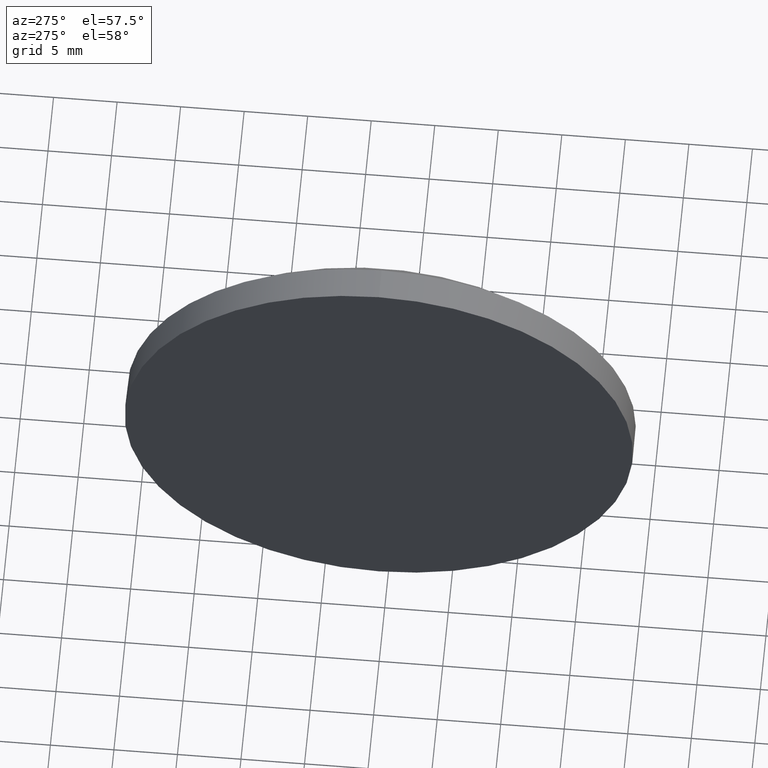
[diagram: clean part render]
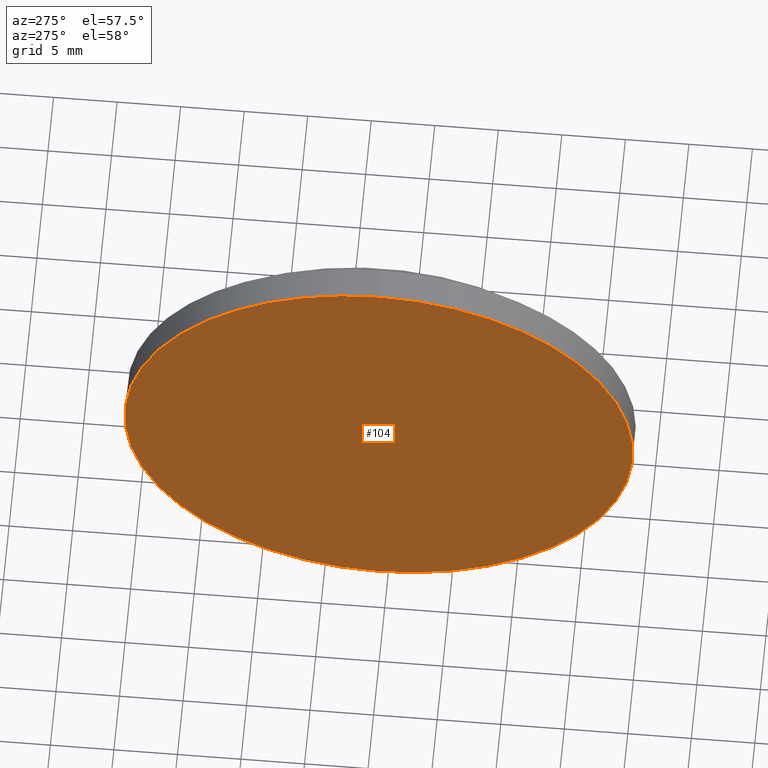
[diagram: same view with one face highlighted and labeled with its STEP entity id]
A machine part, auxiliary view. The second image highlights one B-rep face of the part: STEP entity #104.
In plain terms, the highlighted planar face has unit normal (1, 0, 0).
Its self-contained STEP definition (entity closure, byte-faithful):
#5 = CARTESIAN_POINT ( 'NONE',  ( 472.7872802130123100, 140.7123955263322200, 19.99999999999998900 ) ) ;
#7 = CARTESIAN_POINT ( 'NONE',  ( 472.7872802130123100, 140.7123955263322200, 0.0000000000000000000 ) ) ;
#12 = DIRECTION ( 'NONE',  ( -1.000000000000000000, -0.0000000000000000000, -0.0000000000000000000 ) ) ;
#18 = CARTESIAN_POINT ( 'NONE',  ( 472.7872802130123100, 140.7123955263322200, 0.0000000000000000000 ) ) ;
#27 = ORIENTED_EDGE ( 'NONE', *, *, #60, .T. ) ;
#32 = CARTESIAN_POINT ( 'NONE',  ( 472.7872802130123100, 140.7123955263322200, 0.0000000000000000000 ) ) ;
#37 = EDGE_LOOP ( 'NONE', ( #27, #135 ) ) ;
#42 = VERTEX_POINT ( 'NONE', #5 ) ;
#46 = DIRECTION ( 'NONE',  ( -1.000000000000000000, -0.0000000000000000000, -0.0000000000000000000 ) ) ;
#52 = CARTESIAN_POINT ( 'NONE',  ( 472.7872802130123100, 140.7123955263322200, -19.99999999999998900 ) ) ;
#60 = EDGE_CURVE ( 'NONE', #42, #186, #184, .T. ) ;
#66 = DIRECTION ( 'NONE',  ( 0.0000000000000000000, 0.0000000000000000000, 1.000000000000000000 ) ) ;
#74 = AXIS2_PLACEMENT_3D ( 'NONE', #32, #46, #76 ) ;
#76 = DIRECTION ( 'NONE',  ( 0.0000000000000000000, 0.0000000000000000000, 1.000000000000000000 ) ) ;
#78 = DIRECTION ( 'NONE',  ( 1.000000000000000000, 0.0000000000000000000, 0.0000000000000000000 ) ) ;
#80 = DIRECTION ( 'NONE',  ( 0.0000000000000000000, 0.0000000000000000000, -1.000000000000000000 ) ) ;
#98 = PLANE ( 'NONE',  #150 ) ;
#104 = ADVANCED_FACE ( 'NONE', ( #165 ), #98, .F. ) ;
#117 = EDGE_CURVE ( 'NONE', #186, #42, #169, .T. ) ;
#135 = ORIENTED_EDGE ( 'NONE', *, *, #117, .T. ) ;
#150 = AXIS2_PLACEMENT_3D ( 'NONE', #18, #78, #80 ) ;
#161 = AXIS2_PLACEMENT_3D ( 'NONE', #7, #12, #66 ) ;
#165 = FACE_OUTER_BOUND ( 'NONE', #37, .T. ) ;
#169 = CIRCLE ( 'NONE', #161, 19.99999999999998900 ) ;
#184 = CIRCLE ( 'NONE', #74, 19.99999999999998900 ) ;
#186 = VERTEX_POINT ( 'NONE', #52 ) ;